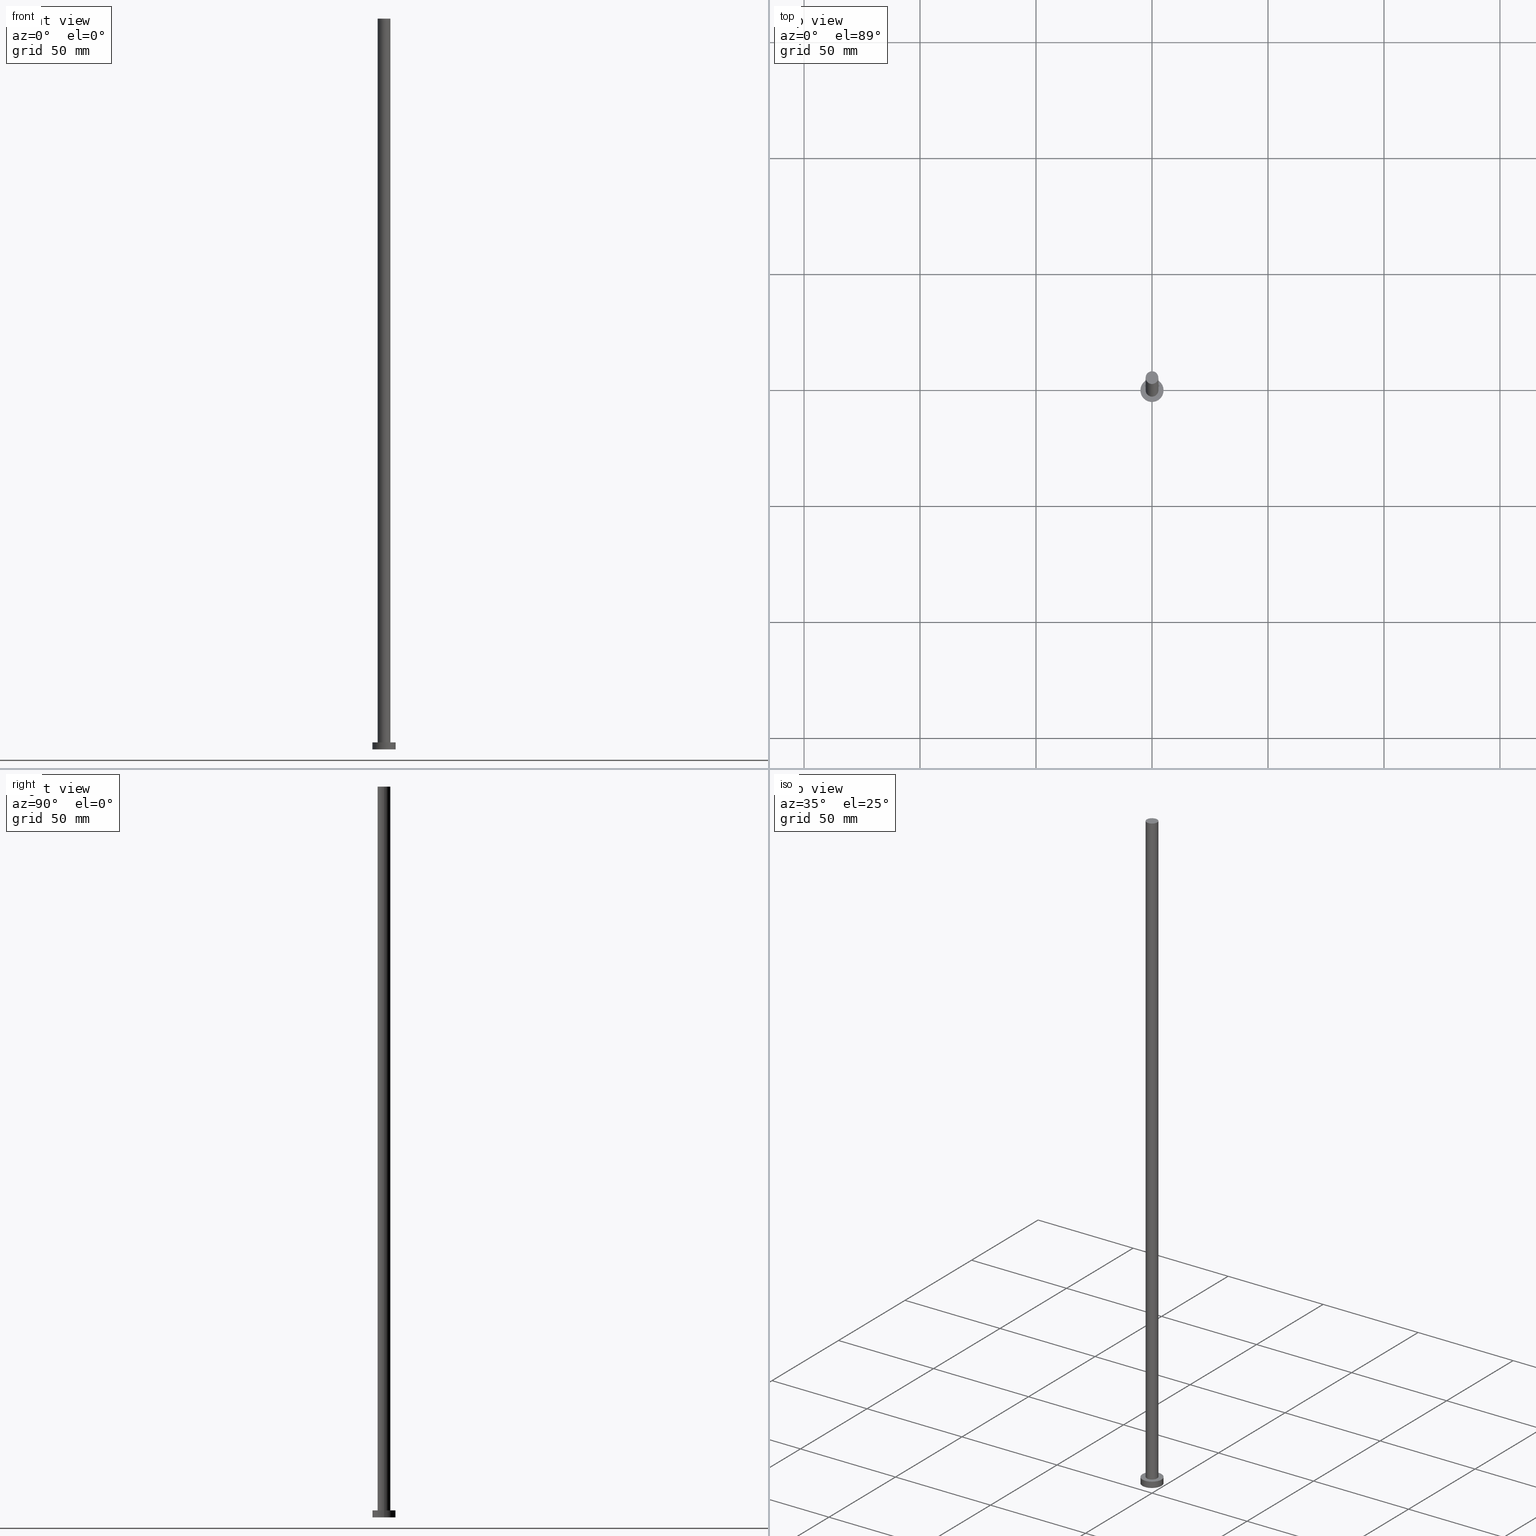
[diagram: canonical four-view strip — front | top / right | iso, engineering-drawing reading convention]
A machine part, canonical four-view strip (front | top / right | iso — engineering-drawing reading convention). The complete STEP part file that produces these views, byte-faithful:
ISO-10303-21;
HEADER;
FILE_DESCRIPTION (( 'STEP AP203' ),
    '1' );
FILE_NAME ('cdd5.STEP',
    '2023-02-13T12:39:20',
    ( '' ),
    ( '' ),
    'SwSTEP 2.0',
    'SolidWorks 2019',
    '' );
FILE_SCHEMA (( 'CONFIG_CONTROL_DESIGN' ));
ENDSEC;

DATA;
#1 = DIRECTION ( 'NONE',  ( 0.000000000000000000, 0.000000000000000000, 1.000000000000000000 ) ) ;
#2 = APPLICATION_CONTEXT ( 'configuration controlled 3d designs of mechanical parts and assemblies' ) ;
#3 = ORIENTED_EDGE ( 'NONE', *, *, #64, .T. ) ;
#4 = EDGE_CURVE ( 'NONE', #158, #103, #135, .T. ) ;
#5 = DIRECTION ( 'NONE',  ( 1.000000000000000000, 0.000000000000000000, 0.000000000000000000 ) ) ;
#6 = CARTESIAN_POINT ( 'NONE',  ( 0.000000000000000000, 0.000000000000000000, 0.000000000000000000 ) ) ;
#7 = CARTESIAN_POINT ( 'NONE',  ( 2.750000000000000000, 3.367778697655221012E-16, 315.0000000000000000 ) ) ;
#8 = CARTESIAN_POINT ( 'NONE',  ( 0.000000000000000000, 0.000000000000000000, 315.0000000000000000 ) ) ;
#9 = EDGE_LOOP ( 'NONE', ( #97, #42, #3, #153 ) ) ;
#10 = DATE_TIME_ROLE ( 'creation_date' ) ;
#11 = VECTOR ( 'NONE', #51, 1000.000000000000000 ) ;
#12 = CC_DESIGN_PERSON_AND_ORGANIZATION_ASSIGNMENT ( #164, #208, ( #221 ) ) ;
#13 = COORDINATED_UNIVERSAL_TIME_OFFSET ( 1, 0, .AHEAD. ) ;
#14 = PRODUCT ( 'cdd5', 'cdd5', '', ( #100 ) ) ;
#15 = UNCERTAINTY_MEASURE_WITH_UNIT (LENGTH_MEASURE( 1.000000000000000082E-05 ), #251, 'distance_accuracy_value', 'NONE');
#16 = AXIS2_PLACEMENT_3D ( 'NONE', #38, #183, #95 ) ;
#17 = CC_DESIGN_SECURITY_CLASSIFICATION ( #221, ( #54 ) ) ;
#18 = SECURITY_CLASSIFICATION_LEVEL ( 'unclassified' ) ;
#19 = PERSON ( 'NEUR�EN�', 'NEUR�EN�', 'NEUR�EN�', ('NEUR�EN�'), ('NEUR�EN�'), ('NEUR�EN�') ) ;
#20 = ORIENTED_EDGE ( 'NONE', *, *, #4, .T. ) ;
#21 = EDGE_CURVE ( 'NONE', #213, #127, #242, .T. ) ;
#22 = LOCAL_TIME ( 13, 39, 20.00000000000000000, #170 ) ;
#23 = APPLICATION_PROTOCOL_DEFINITION ( 'international standard', 'config_control_design', 1994, #199 ) ;
#24 = CC_DESIGN_PERSON_AND_ORGANIZATION_ASSIGNMENT ( #45, #104, ( #14 ) ) ;
#25 = APPROVAL_ROLE ( '' ) ;
#26 = ORIENTED_EDGE ( 'NONE', *, *, #21, .F. ) ;
#27 = DIRECTION ( 'NONE',  ( 1.000000000000000000, 0.000000000000000000, 0.000000000000000000 ) ) ;
#28 = EDGE_CURVE ( 'NONE', #103, #158, #163, .T. ) ;
#29 = DIRECTION ( 'NONE',  ( 0.000000000000000000, 0.000000000000000000, 1.000000000000000000 ) ) ;
#30 = CARTESIAN_POINT ( 'NONE',  ( 0.000000000000000000, 0.000000000000000000, 0.000000000000000000 ) ) ;
#31 = AXIS2_PLACEMENT_3D ( 'NONE', #89, #106, #5 ) ;
#32 = DIRECTION ( 'NONE',  ( 0.000000000000000000, 0.000000000000000000, 1.000000000000000000 ) ) ;
#33 = DIRECTION ( 'NONE',  ( -0.000000000000000000, -0.000000000000000000, -1.000000000000000000 ) ) ;
#34 = DIRECTION ( 'NONE',  ( -0.000000000000000000, -0.000000000000000000, -1.000000000000000000 ) ) ;
#35 = PERSON_AND_ORGANIZATION ( #19, #108 ) ;
#36 = PLANE ( 'NONE',  #68 ) ;
#37 = FACE_OUTER_BOUND ( 'NONE', #192, .T. ) ;
#38 = CARTESIAN_POINT ( 'NONE',  ( 0.000000000000000000, 0.000000000000000000, 315.0000000000000000 ) ) ;
#39 = CARTESIAN_POINT ( 'NONE',  ( -5.000000000000000000, 0.000000000000000000, 3.000000000000000000 ) ) ;
#40 = APPROVAL_STATUS ( 'not_yet_approved' ) ;
#41 = EDGE_CURVE ( 'NONE', #216, #220, #147, .T. ) ;
#42 = ORIENTED_EDGE ( 'NONE', *, *, #138, .F. ) ;
#43 = COORDINATED_UNIVERSAL_TIME_OFFSET ( 1, 0, .AHEAD. ) ;
#44 = VECTOR ( 'NONE', #149, 1000.000000000000000 ) ;
#45 = PERSON_AND_ORGANIZATION ( #19, #108 ) ;
#46 = ORIENTED_EDGE ( 'NONE', *, *, #83, .F. ) ;
#47 = AXIS2_PLACEMENT_3D ( 'NONE', #70, #34, #110 ) ;
#48 = CYLINDRICAL_SURFACE ( 'NONE', #102, 5.000000000000000000 ) ;
#49 = ORIENTED_EDGE ( 'NONE', *, *, #83, .T. ) ;
#50 = ORIENTED_EDGE ( 'NONE', *, *, #229, .T. ) ;
#51 = DIRECTION ( 'NONE',  ( -0.000000000000000000, -0.000000000000000000, -1.000000000000000000 ) ) ;
#52 = CC_DESIGN_APPROVAL ( #88, ( #221 ) ) ;
#53 = DIRECTION ( 'NONE',  ( -1.000000000000000000, 0.000000000000000000, 0.000000000000000000 ) ) ;
#54 = PRODUCT_DEFINITION_FORMATION_WITH_SPECIFIED_SOURCE ( 'LIBOVOLN�', '', #14, .NOT_KNOWN. ) ;
#55 = CARTESIAN_POINT ( 'NONE',  ( -5.000000000000000000, 0.000000000000000000, 0.000000000000000000 ) ) ;
#56 = LINE ( 'NONE', #130, #252 ) ;
#57 = DATE_TIME_ROLE ( 'classification_date' ) ;
#58 = CALENDAR_DATE ( 2023, 13, 2 ) ;
#59 = LOCAL_TIME ( 13, 39, 20.00000000000000000, #13 ) ;
#60 = CC_DESIGN_PERSON_AND_ORGANIZATION_ASSIGNMENT ( #241, #145, ( #207 ) ) ;
#61 =( NAMED_UNIT ( * ) SI_UNIT ( $, .STERADIAN. ) SOLID_ANGLE_UNIT ( ) );
#62 = AXIS2_PLACEMENT_3D ( 'NONE', #6, #29, #154 ) ;
#63 = ORIENTED_EDGE ( 'NONE', *, *, #255, .F. ) ;
#64 = EDGE_CURVE ( 'NONE', #127, #220, #105, .T. ) ;
#65 = CYLINDRICAL_SURFACE ( 'NONE', #47, 2.750000000000000000 ) ;
#66 = EDGE_CURVE ( 'NONE', #213, #216, #126, .T. ) ;
#67 = VERTEX_POINT ( 'NONE', #7 ) ;
#68 = AXIS2_PLACEMENT_3D ( 'NONE', #246, #74, #203 ) ;
#69 = CARTESIAN_POINT ( 'NONE',  ( -5.000000000000000000, 0.000000000000000000, 3.000000000000000000 ) ) ;
#70 = CARTESIAN_POINT ( 'NONE',  ( 0.000000000000000000, 0.000000000000000000, 315.0000000000000000 ) ) ;
#71 = AXIS2_PLACEMENT_3D ( 'NONE', #194, #32, #155 ) ;
#72 = CARTESIAN_POINT ( 'NONE',  ( 2.750000000000000000, 3.367778697655221012E-16, 315.0000000000000000 ) ) ;
#73 = ADVANCED_FACE ( 'NONE', ( #91 ), #65, .T. ) ;
#74 = DIRECTION ( 'NONE',  ( 0.000000000000000000, 0.000000000000000000, 1.000000000000000000 ) ) ;
#75 = ADVANCED_BREP_SHAPE_REPRESENTATION ( 'cdd5', ( #253, #211 ), #236 ) ;
#76 = DATE_AND_TIME ( #178, #157 ) ;
#77 = DIRECTION ( 'NONE',  ( -0.000000000000000000, -0.000000000000000000, -1.000000000000000000 ) ) ;
#78 = CYLINDRICAL_SURFACE ( 'NONE', #84, 5.000000000000000000 ) ;
#79 = EDGE_CURVE ( 'NONE', #220, #216, #180, .T. ) ;
#80 = AXIS2_PLACEMENT_3D ( 'NONE', #123, #245, #223 ) ;
#81 = AXIS2_PLACEMENT_3D ( 'NONE', #8, #179, #93 ) ;
#82 = PERSON_AND_ORGANIZATION ( #19, #108 ) ;
#83 = EDGE_CURVE ( 'NONE', #67, #158, #205, .T. ) ;
#84 = AXIS2_PLACEMENT_3D ( 'NONE', #129, #151, #193 ) ;
#85 = EDGE_CURVE ( 'NONE', #239, #103, #56, .T. ) ;
#86 = DIRECTION ( 'NONE',  ( 1.000000000000000000, 0.000000000000000000, 0.000000000000000000 ) ) ;
#87 = ORIENTED_EDGE ( 'NONE', *, *, #64, .F. ) ;
#88 = APPROVAL ( #40, 'NEUR�EN�' ) ;
#89 = CARTESIAN_POINT ( 'NONE',  ( 0.000000000000000000, 0.000000000000000000, 3.000000000000000000 ) ) ;
#90 = ORIENTED_EDGE ( 'NONE', *, *, #79, .F. ) ;
#91 = FACE_OUTER_BOUND ( 'NONE', #124, .T. ) ;
#92 = APPROVAL_STATUS ( 'not_yet_approved' ) ;
#93 = DIRECTION ( 'NONE',  ( 1.000000000000000000, 0.000000000000000000, 0.000000000000000000 ) ) ;
#94 = DESIGN_CONTEXT ( 'detailed design', #2, 'design' ) ;
#95 = DIRECTION ( 'NONE',  ( 1.000000000000000000, 0.000000000000000000, 0.000000000000000000 ) ) ;
#96 = APPROVAL_ROLE ( '' ) ;
#97 = ORIENTED_EDGE ( 'NONE', *, *, #66, .F. ) ;
#98 = AXIS2_PLACEMENT_3D ( 'NONE', #215, #1, #175 ) ;
#99 = ORIENTED_EDGE ( 'NONE', *, *, #21, .T. ) ;
#100 = MECHANICAL_CONTEXT ( 'NONE', #199, 'mechanical' ) ;
#101 = ORIENTED_EDGE ( 'NONE', *, *, #85, .F. ) ;
#102 = AXIS2_PLACEMENT_3D ( 'NONE', #189, #33, #53 ) ;
#103 = VERTEX_POINT ( 'NONE', #196 ) ;
#104 = PERSON_AND_ORGANIZATION_ROLE ( 'design_owner' ) ;
#105 = LINE ( 'NONE', #69, #11 ) ;
#106 = DIRECTION ( 'NONE',  ( 0.000000000000000000, 0.000000000000000000, 1.000000000000000000 ) ) ;
#107 = ORIENTED_EDGE ( 'NONE', *, *, #66, .T. ) ;
#108 = ORGANIZATION ( 'NEUR�EN�', 'NEUR�EN�', '' ) ;
#109 = CARTESIAN_POINT ( 'NONE',  ( 5.000000000000000000, 6.123233995736766282E-16, 3.000000000000000000 ) ) ;
#110 = DIRECTION ( 'NONE',  ( -1.000000000000000000, 0.000000000000000000, 0.000000000000000000 ) ) ;
#111 = FACE_OUTER_BOUND ( 'NONE', #231, .T. ) ;
#112 = CC_DESIGN_DATE_AND_TIME_ASSIGNMENT ( #150, #57, ( #221 ) ) ;
#113 = APPROVAL_DATE_TIME ( #177, #152 ) ;
#114 = PRODUCT_DEFINITION_SHAPE ( 'NONE', 'NONE',  #207 ) ;
#115 = PLANE ( 'NONE',  #62 ) ;
#116 = CC_DESIGN_APPROVAL ( #152, ( #207 ) ) ;
#117 = DATE_AND_TIME ( #250, #59 ) ;
#118 = ADVANCED_FACE ( 'NONE', ( #131 ), #36, .T. ) ;
#119 = ORIENTED_EDGE ( 'NONE', *, *, #28, .T. ) ;
#120 = PERSON_AND_ORGANIZATION ( #19, #108 ) ;
#121 = CC_DESIGN_DATE_AND_TIME_ASSIGNMENT ( #76, #10, ( #207 ) ) ;
#122 = AXIS2_PLACEMENT_3D ( 'NONE', #30, #190, #139 ) ;
#123 = CARTESIAN_POINT ( 'NONE',  ( 0.000000000000000000, 0.000000000000000000, 0.000000000000000000 ) ) ;
#124 = EDGE_LOOP ( 'NONE', ( #46, #141, #171, #119 ) ) ;
#125 = ORIENTED_EDGE ( 'NONE', *, *, #255, .T. ) ;
#126 = LINE ( 'NONE', #109, #206 ) ;
#127 = VERTEX_POINT ( 'NONE', #39 ) ;
#128 = ADVANCED_FACE ( 'NONE', ( #225 ), #115, .F. ) ;
#129 = CARTESIAN_POINT ( 'NONE',  ( 0.000000000000000000, 0.000000000000000000, 3.000000000000000000 ) ) ;
#130 = CARTESIAN_POINT ( 'NONE',  ( -2.750000000000000000, 0.000000000000000000, 315.0000000000000000 ) ) ;
#131 = FACE_OUTER_BOUND ( 'NONE', #188, .T. ) ;
#132 = DIRECTION ( 'NONE',  ( -0.000000000000000000, -0.000000000000000000, -1.000000000000000000 ) ) ;
#133 = PERSON_AND_ORGANIZATION ( #19, #108 ) ;
#134 = PERSON_AND_ORGANIZATION_ROLE ( 'design_supplier' ) ;
#135 = CIRCLE ( 'NONE', #227, 2.750000000000000000 ) ;
#136 = CC_DESIGN_APPROVAL ( #234, ( #54 ) ) ;
#137 = DIRECTION ( 'NONE',  ( 0.000000000000000000, 0.000000000000000000, 1.000000000000000000 ) ) ;
#138 = EDGE_CURVE ( 'NONE', #127, #213, #198, .T. ) ;
#139 = DIRECTION ( 'NONE',  ( 1.000000000000000000, 0.000000000000000000, 0.000000000000000000 ) ) ;
#140 = LOCAL_TIME ( 13, 39, 20.00000000000000000, #167 ) ;
#141 = ORIENTED_EDGE ( 'NONE', *, *, #229, .F. ) ;
#142 = ORIENTED_EDGE ( 'NONE', *, *, #138, .T. ) ;
#143 = CLOSED_SHELL ( 'NONE', ( #214, #244, #166, #172, #128, #73, #118 ) ) ;
#144 = APPROVAL_PERSON_ORGANIZATION ( #133, #88, #96 ) ;
#145 = PERSON_AND_ORGANIZATION_ROLE ( 'creator' ) ;
#146 = FACE_BOUND ( 'NONE', #233, .T. ) ;
#147 = CIRCLE ( 'NONE', #122, 5.000000000000000000 ) ;
#148 = CARTESIAN_POINT ( 'NONE',  ( 5.000000000000000000, 6.123233995736766282E-16, 0.000000000000000000 ) ) ;
#149 = DIRECTION ( 'NONE',  ( -0.000000000000000000, -0.000000000000000000, -1.000000000000000000 ) ) ;
#150 = DATE_AND_TIME ( #58, #254 ) ;
#151 = DIRECTION ( 'NONE',  ( -0.000000000000000000, -0.000000000000000000, -1.000000000000000000 ) ) ;
#152 = APPROVAL ( #173, 'NEUR�EN�' ) ;
#153 = ORIENTED_EDGE ( 'NONE', *, *, #79, .T. ) ;
#154 = DIRECTION ( 'NONE',  ( 1.000000000000000000, 0.000000000000000000, -0.000000000000000000 ) ) ;
#155 = DIRECTION ( 'NONE',  ( 1.000000000000000000, 0.000000000000000000, 0.000000000000000000 ) ) ;
#156 = ORIENTED_EDGE ( 'NONE', *, *, #4, .F. ) ;
#157 = LOCAL_TIME ( 13, 39, 20.00000000000000000, #197 ) ;
#158 = VERTEX_POINT ( 'NONE', #232 ) ;
#159 = APPROVAL_ROLE ( '' ) ;
#160 = CARTESIAN_POINT ( 'NONE',  ( 5.000000000000000000, 6.123233995736766282E-16, 3.000000000000000000 ) ) ;
#161 = APPROVAL_PERSON_ORGANIZATION ( #35, #234, #159 ) ;
#162 = CYLINDRICAL_SURFACE ( 'NONE', #200, 2.750000000000000000 ) ;
#163 = CIRCLE ( 'NONE', #71, 2.750000000000000000 ) ;
#164 = PERSON_AND_ORGANIZATION ( #19, #108 ) ;
#165 = CARTESIAN_POINT ( 'NONE',  ( -2.750000000000000000, 0.000000000000000000, 315.0000000000000000 ) ) ;
#166 = ADVANCED_FACE ( 'NONE', ( #217 ), #48, .T. ) ;
#167 = COORDINATED_UNIVERSAL_TIME_OFFSET ( 1, 0, .AHEAD. ) ;
#168 = ORIENTED_EDGE ( 'NONE', *, *, #28, .F. ) ;
#169 = DATE_AND_TIME ( #174, #140 ) ;
#170 = COORDINATED_UNIVERSAL_TIME_OFFSET ( 1, 0, .AHEAD. ) ;
#171 = ORIENTED_EDGE ( 'NONE', *, *, #85, .T. ) ;
#172 = ADVANCED_FACE ( 'NONE', ( #146, #111 ), #224, .T. ) ;
#173 = APPROVAL_STATUS ( 'not_yet_approved' ) ;
#174 = CALENDAR_DATE ( 2023, 13, 2 ) ;
#175 = DIRECTION ( 'NONE',  ( 1.000000000000000000, 0.000000000000000000, 0.000000000000000000 ) ) ;
#176 = DIRECTION ( 'NONE',  ( -0.000000000000000000, -0.000000000000000000, -1.000000000000000000 ) ) ;
#177 = DATE_AND_TIME ( #222, #22 ) ;
#178 = CALENDAR_DATE ( 2023, 13, 2 ) ;
#179 = DIRECTION ( 'NONE',  ( 0.000000000000000000, 0.000000000000000000, 1.000000000000000000 ) ) ;
#180 = CIRCLE ( 'NONE', #80, 5.000000000000000000 ) ;
#181 = AXIS2_PLACEMENT_3D ( 'NONE', #195, #201, #202 ) ;
#182 = PRODUCT_RELATED_PRODUCT_CATEGORY ( 'detail', '', ( #14 ) ) ;
#183 = DIRECTION ( 'NONE',  ( 0.000000000000000000, 0.000000000000000000, 1.000000000000000000 ) ) ;
#184 = APPROVAL_DATE_TIME ( #169, #88 ) ;
#185 = CC_DESIGN_PERSON_AND_ORGANIZATION_ASSIGNMENT ( #82, #134, ( #54 ) ) ;
#186 = EDGE_LOOP ( 'NONE', ( #90, #237 ) ) ;
#187 = CIRCLE ( 'NONE', #16, 2.750000000000000000 ) ;
#188 = EDGE_LOOP ( 'NONE', ( #50, #125 ) ) ;
#189 = CARTESIAN_POINT ( 'NONE',  ( 0.000000000000000000, 0.000000000000000000, 3.000000000000000000 ) ) ;
#190 = DIRECTION ( 'NONE',  ( 0.000000000000000000, 0.000000000000000000, 1.000000000000000000 ) ) ;
#191 = SHAPE_DEFINITION_REPRESENTATION ( #114, #75 ) ;
#192 = EDGE_LOOP ( 'NONE', ( #63, #49, #20, #101 ) ) ;
#193 = DIRECTION ( 'NONE',  ( -1.000000000000000000, 0.000000000000000000, 0.000000000000000000 ) ) ;
#194 = CARTESIAN_POINT ( 'NONE',  ( 0.000000000000000000, 0.000000000000000000, 3.000000000000000000 ) ) ;
#195 = CARTESIAN_POINT ( 'NONE',  ( 0.000000000000000000, 0.000000000000000000, 3.000000000000000000 ) ) ;
#196 = CARTESIAN_POINT ( 'NONE',  ( -2.750000000000000000, 0.000000000000000000, 3.000000000000000000 ) ) ;
#197 = COORDINATED_UNIVERSAL_TIME_OFFSET ( 1, 0, .AHEAD. ) ;
#198 = CIRCLE ( 'NONE', #31, 5.000000000000000000 ) ;
#199 = APPLICATION_CONTEXT ( 'configuration controlled 3d designs of mechanical parts and assemblies' ) ;
#200 = AXIS2_PLACEMENT_3D ( 'NONE', #247, #77, #243 ) ;
#201 = DIRECTION ( 'NONE',  ( 0.000000000000000000, 0.000000000000000000, 1.000000000000000000 ) ) ;
#202 = DIRECTION ( 'NONE',  ( 1.000000000000000000, 0.000000000000000000, -0.000000000000000000 ) ) ;
#203 = DIRECTION ( 'NONE',  ( 1.000000000000000000, 0.000000000000000000, -0.000000000000000000 ) ) ;
#204 = PERSON_AND_ORGANIZATION ( #19, #108 ) ;
#205 = LINE ( 'NONE', #72, #44 ) ;
#206 = VECTOR ( 'NONE', #176, 1000.000000000000000 ) ;
#207 = PRODUCT_DEFINITION ( 'NEZN�M�', '', #54, #94 ) ;
#208 = PERSON_AND_ORGANIZATION_ROLE ( 'classification_officer' ) ;
#209 = EDGE_LOOP ( 'NONE', ( #26, #107, #235, #87 ) ) ;
#210 = PERSON_AND_ORGANIZATION_ROLE ( 'creator' ) ;
#211 = AXIS2_PLACEMENT_3D ( 'NONE', #212, #137, #86 ) ;
#212 = CARTESIAN_POINT ( 'NONE',  ( 0.000000000000000000, 0.000000000000000000, 0.000000000000000000 ) ) ;
#213 = VERTEX_POINT ( 'NONE', #160 ) ;
#214 = ADVANCED_FACE ( 'NONE', ( #37 ), #162, .T. ) ;
#215 = CARTESIAN_POINT ( 'NONE',  ( 0.000000000000000000, 0.000000000000000000, 3.000000000000000000 ) ) ;
#216 = VERTEX_POINT ( 'NONE', #148 ) ;
#217 = FACE_OUTER_BOUND ( 'NONE', #9, .T. ) ;
#218 = CARTESIAN_POINT ( 'NONE',  ( 0.000000000000000000, 0.000000000000000000, 3.000000000000000000 ) ) ;
#219 = APPLICATION_PROTOCOL_DEFINITION ( 'international standard', 'config_control_design', 1994, #2 ) ;
#220 = VERTEX_POINT ( 'NONE', #55 ) ;
#221 = SECURITY_CLASSIFICATION ( '', '', #18 ) ;
#222 = CALENDAR_DATE ( 2023, 13, 2 ) ;
#223 = DIRECTION ( 'NONE',  ( 1.000000000000000000, 0.000000000000000000, 0.000000000000000000 ) ) ;
#224 = PLANE ( 'NONE',  #181 ) ;
#225 = FACE_OUTER_BOUND ( 'NONE', #186, .T. ) ;
#226 = CIRCLE ( 'NONE', #81, 2.750000000000000000 ) ;
#227 = AXIS2_PLACEMENT_3D ( 'NONE', #218, #238, #27 ) ;
#228 =( NAMED_UNIT ( * ) PLANE_ANGLE_UNIT ( ) SI_UNIT ( $, .RADIAN. ) );
#229 = EDGE_CURVE ( 'NONE', #239, #67, #187, .T. ) ;
#230 = APPROVAL_DATE_TIME ( #117, #234 ) ;
#231 = EDGE_LOOP ( 'NONE', ( #142, #99 ) ) ;
#232 = CARTESIAN_POINT ( 'NONE',  ( 2.750000000000000000, 3.367778697655221012E-16, 3.000000000000000000 ) ) ;
#233 = EDGE_LOOP ( 'NONE', ( #168, #156 ) ) ;
#234 = APPROVAL ( #92, 'NEUR�EN�' ) ;
#235 = ORIENTED_EDGE ( 'NONE', *, *, #41, .T. ) ;
#236 =( GEOMETRIC_REPRESENTATION_CONTEXT ( 3 ) GLOBAL_UNCERTAINTY_ASSIGNED_CONTEXT ( ( #15 ) ) GLOBAL_UNIT_ASSIGNED_CONTEXT ( ( #251, #228, #61 ) ) REPRESENTATION_CONTEXT ( 'NONE', 'WORKASPACE' ) );
#237 = ORIENTED_EDGE ( 'NONE', *, *, #41, .F. ) ;
#238 = DIRECTION ( 'NONE',  ( 0.000000000000000000, 0.000000000000000000, 1.000000000000000000 ) ) ;
#239 = VERTEX_POINT ( 'NONE', #165 ) ;
#240 = CC_DESIGN_PERSON_AND_ORGANIZATION_ASSIGNMENT ( #204, #210, ( #54 ) ) ;
#241 = PERSON_AND_ORGANIZATION ( #19, #108 ) ;
#242 = CIRCLE ( 'NONE', #98, 5.000000000000000000 ) ;
#243 = DIRECTION ( 'NONE',  ( -1.000000000000000000, 0.000000000000000000, 0.000000000000000000 ) ) ;
#244 = ADVANCED_FACE ( 'NONE', ( #249 ), #78, .T. ) ;
#245 = DIRECTION ( 'NONE',  ( 0.000000000000000000, 0.000000000000000000, 1.000000000000000000 ) ) ;
#246 = CARTESIAN_POINT ( 'NONE',  ( 0.000000000000000000, 0.000000000000000000, 315.0000000000000000 ) ) ;
#247 = CARTESIAN_POINT ( 'NONE',  ( 0.000000000000000000, 0.000000000000000000, 315.0000000000000000 ) ) ;
#248 = APPROVAL_PERSON_ORGANIZATION ( #120, #152, #25 ) ;
#249 = FACE_OUTER_BOUND ( 'NONE', #209, .T. ) ;
#250 = CALENDAR_DATE ( 2023, 13, 2 ) ;
#251 =( LENGTH_UNIT ( ) NAMED_UNIT ( * ) SI_UNIT ( .MILLI., .METRE. ) );
#252 = VECTOR ( 'NONE', #132, 1000.000000000000000 ) ;
#253 = MANIFOLD_SOLID_BREP ( 'P�idat vysunut�m3', #143 ) ;
#254 = LOCAL_TIME ( 13, 39, 20.00000000000000000, #43 ) ;
#255 = EDGE_CURVE ( 'NONE', #67, #239, #226, .T. ) ;
ENDSEC;
END-ISO-10303-21;
